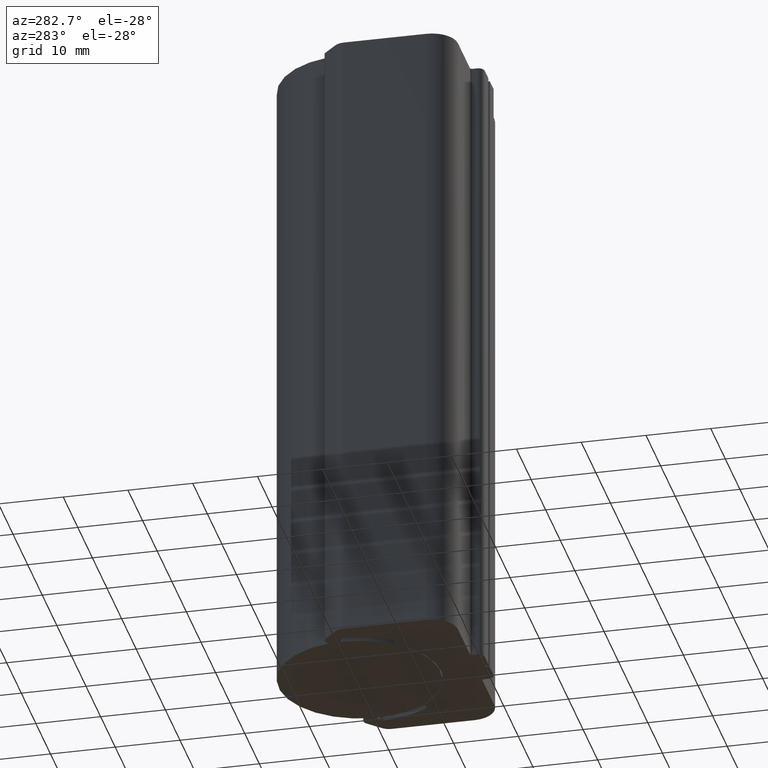
[diagram: clean part render]
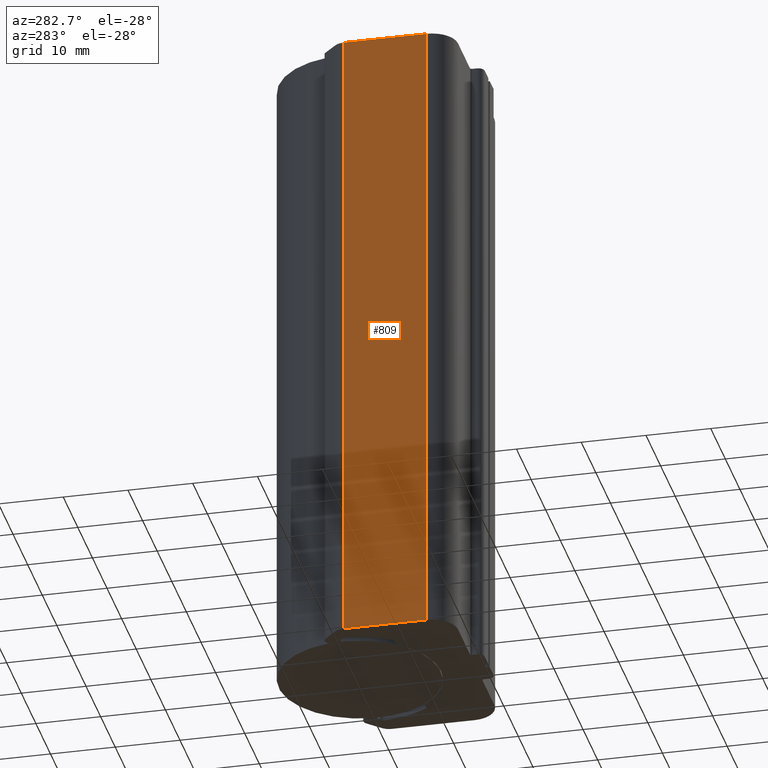
[diagram: same view with one face highlighted and labeled with its STEP entity id]
A machine part, auxiliary view. The second image highlights one B-rep face of the part: STEP entity #809.
In plain terms, the highlighted planar face has unit normal (-1, 0, 0).
Its self-contained STEP definition (entity closure, byte-faithful):
#86=FACE_OUTER_BOUND('',#129,.T.);
#129=EDGE_LOOP('',(#697,#698,#699,#700));
#197=LINE('',#1310,#268);
#247=LINE('',#1453,#318);
#248=LINE('',#1456,#319);
#249=LINE('',#1457,#320);
#268=VECTOR('',#1037,10.);
#318=VECTOR('',#1201,10.);
#319=VECTOR('',#1204,10.);
#320=VECTOR('',#1205,10.);
#360=VERTEX_POINT('',#1307);
#361=VERTEX_POINT('',#1309);
#397=VERTEX_POINT('',#1451);
#398=VERTEX_POINT('',#1455);
#438=EDGE_CURVE('',#360,#361,#197,.T.);
#510=EDGE_CURVE('',#360,#397,#247,.T.);
#511=EDGE_CURVE('',#398,#397,#248,.T.);
#512=EDGE_CURVE('',#361,#398,#249,.T.);
#697=ORIENTED_EDGE('',*,*,#510,.T.);
#698=ORIENTED_EDGE('',*,*,#511,.F.);
#699=ORIENTED_EDGE('',*,*,#512,.F.);
#700=ORIENTED_EDGE('',*,*,#438,.F.);
#768=PLANE('',#961);
#809=ADVANCED_FACE('',(#86),#768,.T.);
#961=AXIS2_PLACEMENT_3D('',#1454,#1202,#1203);
#1037=DIRECTION('',(0.,1.,0.));
#1201=DIRECTION('',(0.,0.,1.));
#1202=DIRECTION('center_axis',(-1.,0.,0.));
#1203=DIRECTION('ref_axis',(0.,-1.,0.));
#1204=DIRECTION('',(0.,-1.,0.));
#1205=DIRECTION('',(0.,0.,1.));
#1307=CARTESIAN_POINT('',(-16.5,-14.0000000000001,-50.));
#1309=CARTESIAN_POINT('',(-16.5,-1.26421356237337,-50.));
#1310=CARTESIAN_POINT('',(-16.5,-1.26421356237337,-50.));
#1451=CARTESIAN_POINT('',(-16.5,-14.0000000000001,50.));
#1453=CARTESIAN_POINT('',(-16.5,-14.0000000000001,0.));
#1454=CARTESIAN_POINT('Origin',(-16.5,-1.26421356237337,0.));
#1455=CARTESIAN_POINT('',(-16.5,-1.26421356237337,50.));
#1456=CARTESIAN_POINT('',(-16.5,-1.26421356237337,50.));
#1457=CARTESIAN_POINT('',(-16.5,-1.26421356237337,0.));